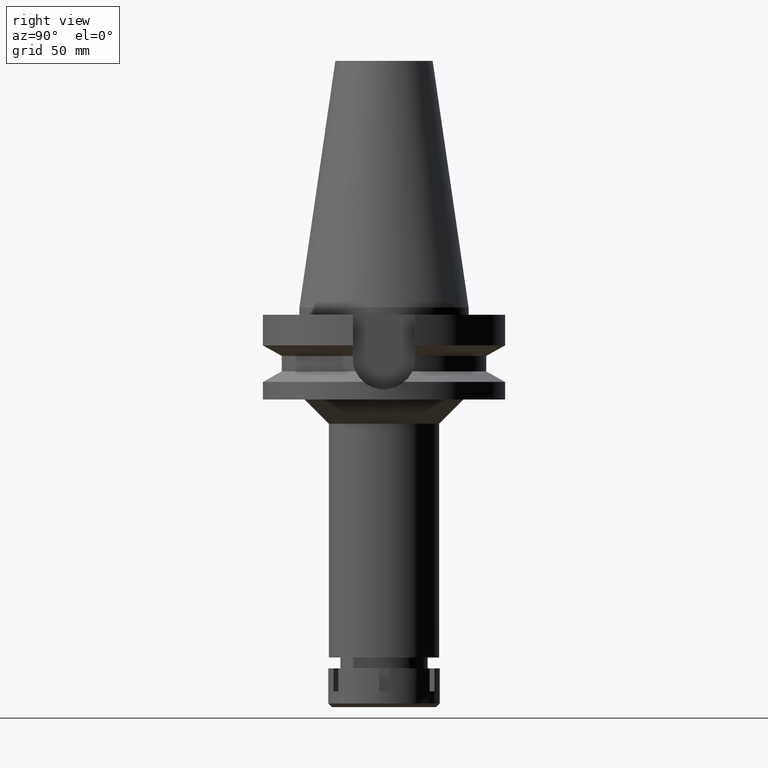
[diagram: clean part render]
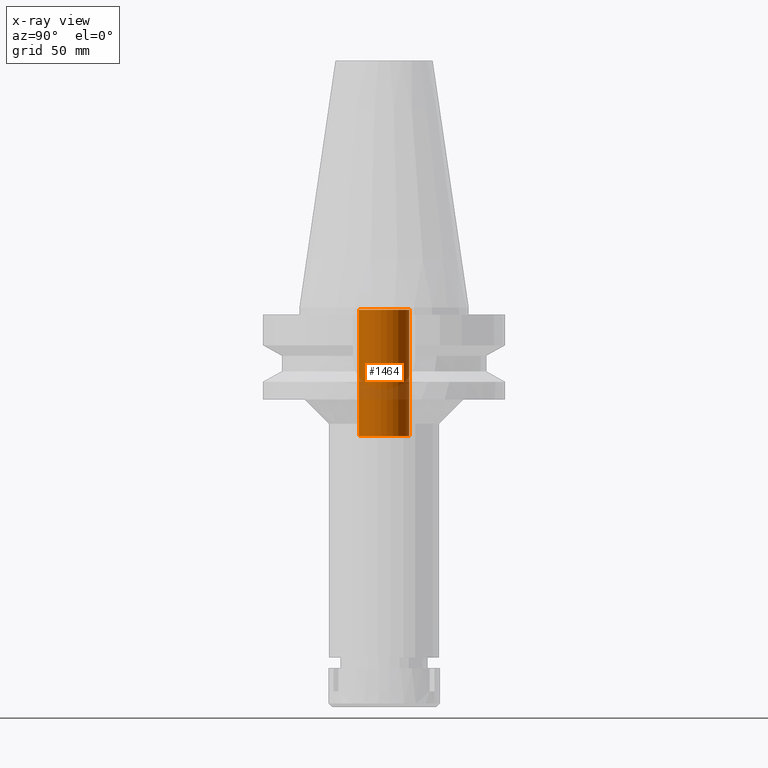
[diagram: x-ray — body ghosted, one internal face saturated and labeled with its STEP entity id]
A machine part, right view, then the same camera in x-ray: the body is ghosted and one INTERNAL B-rep face — a face not visible from any outside direction — is saturated and labeled: STEP entity #1464.
In plain terms, the highlighted cylindrical surface (edge-blend (fillet) strip) has radius 10.4 mm, axis along (0, 0, -1).
Its self-contained STEP definition (entity closure, byte-faithful):
#4 = CARTESIAN_POINT ( 'NONE',  ( 0.0000000000000000000, 2.629806536488999751E-14, -0.9999999999998000488 ) ) ;
#17 = DIRECTION ( 'NONE',  ( 0.0000000000000000000, 0.0000000000000000000, -1.000000000000000000 ) ) ;
#96 = CIRCLE ( 'NONE', #1703, 10.40000000000000036 ) ;
#110 = EDGE_CURVE ( 'NONE', #1815, #2174, #96, .T. ) ;
#598 = DIRECTION ( 'NONE',  ( 0.0000000000000000000, 1.000000000000000000, 0.0000000000000000000 ) ) ;
#655 = LINE ( 'NONE', #2339, #2851 ) ;
#752 = CARTESIAN_POINT ( 'NONE',  ( 0.0000000000000000000, -10.40000000000000036, -0.9999999999998000488 ) ) ;
#776 = EDGE_LOOP ( 'NONE', ( #2294, #1023, #1141, #3343 ) ) ;
#829 = EDGE_CURVE ( 'NONE', #3483, #2174, #3560, .T. ) ;
#1023 = ORIENTED_EDGE ( 'NONE', *, *, #1167, .T. ) ;
#1141 = ORIENTED_EDGE ( 'NONE', *, *, #110, .T. ) ;
#1154 = DIRECTION ( 'NONE',  ( 0.0000000000000000000, -1.000000000000000000, 0.0000000000000000000 ) ) ;
#1167 = EDGE_CURVE ( 'NONE', #1332, #1815, #655, .T. ) ;
#1296 = VECTOR ( 'NONE', #3285, 1000.000000000000000 ) ;
#1332 = VERTEX_POINT ( 'NONE', #2834 ) ;
#1429 = CARTESIAN_POINT ( 'NONE',  ( 0.0000000000000000000, 2.629806536488999751E-14, 114.7399999999999949 ) ) ;
#1441 = FACE_OUTER_BOUND ( 'NONE', #776, .T. ) ;
#1464 = ADVANCED_FACE ( 'NONE', ( #1441 ), #3130, .F. ) ;
#1506 = CARTESIAN_POINT ( 'NONE',  ( 0.0000000000000000000, 10.40000000000000036, -53.19999999999999574 ) ) ;
#1703 = AXIS2_PLACEMENT_3D ( 'NONE', #4, #1934, #3108 ) ;
#1815 = VERTEX_POINT ( 'NONE', #752 ) ;
#1934 = DIRECTION ( 'NONE',  ( 0.0000000000000000000, 0.0000000000000000000, 1.000000000000000000 ) ) ;
#1987 = CARTESIAN_POINT ( 'NONE',  ( 0.0000000000000000000, 2.629806536488999751E-14, -53.19999999999999574 ) ) ;
#2174 = VERTEX_POINT ( 'NONE', #3227 ) ;
#2294 = ORIENTED_EDGE ( 'NONE', *, *, #3281, .T. ) ;
#2308 = AXIS2_PLACEMENT_3D ( 'NONE', #1429, #17, #1154 ) ;
#2339 = CARTESIAN_POINT ( 'NONE',  ( 0.0000000000000000000, -10.40000000000000036, -53.19999999999999574 ) ) ;
#2662 = DIRECTION ( 'NONE',  ( 0.0000000000000000000, 0.0000000000000000000, 1.000000000000000000 ) ) ;
#2785 = CARTESIAN_POINT ( 'NONE',  ( 0.0000000000000000000, 10.40000000000000036, -53.19999999999999574 ) ) ;
#2834 = CARTESIAN_POINT ( 'NONE',  ( 0.0000000000000000000, -10.40000000000000036, -53.19999999999999574 ) ) ;
#2851 = VECTOR ( 'NONE', #2662, 1000.000000000000000 ) ;
#3108 = DIRECTION ( 'NONE',  ( 0.0000000000000000000, -1.000000000000000000, 0.0000000000000000000 ) ) ;
#3126 = DIRECTION ( 'NONE',  ( 0.0000000000000000000, 0.0000000000000000000, -1.000000000000000000 ) ) ;
#3130 = CYLINDRICAL_SURFACE ( 'NONE', #2308, 10.40000000000000036 ) ;
#3227 = CARTESIAN_POINT ( 'NONE',  ( 0.0000000000000000000, 10.40000000000000036, -0.9999999999998000488 ) ) ;
#3281 = EDGE_CURVE ( 'NONE', #3483, #1332, #3383, .T. ) ;
#3285 = DIRECTION ( 'NONE',  ( 0.0000000000000000000, 0.0000000000000000000, 1.000000000000000000 ) ) ;
#3343 = ORIENTED_EDGE ( 'NONE', *, *, #829, .F. ) ;
#3383 = CIRCLE ( 'NONE', #3547, 10.40000000000000036 ) ;
#3483 = VERTEX_POINT ( 'NONE', #1506 ) ;
#3547 = AXIS2_PLACEMENT_3D ( 'NONE', #1987, #3126, #598 ) ;
#3560 = LINE ( 'NONE', #2785, #1296 ) ;